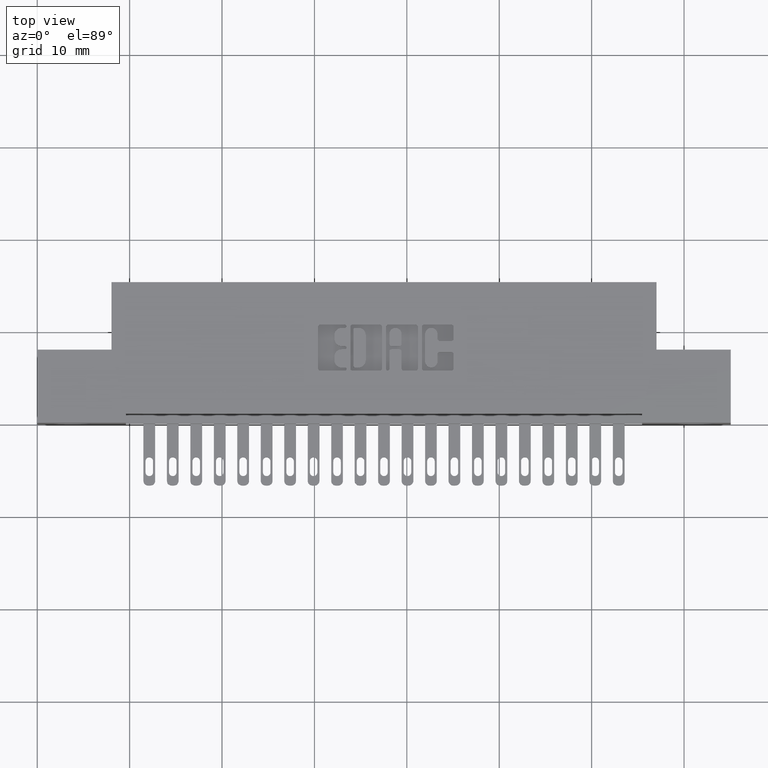
[diagram: clean part render]
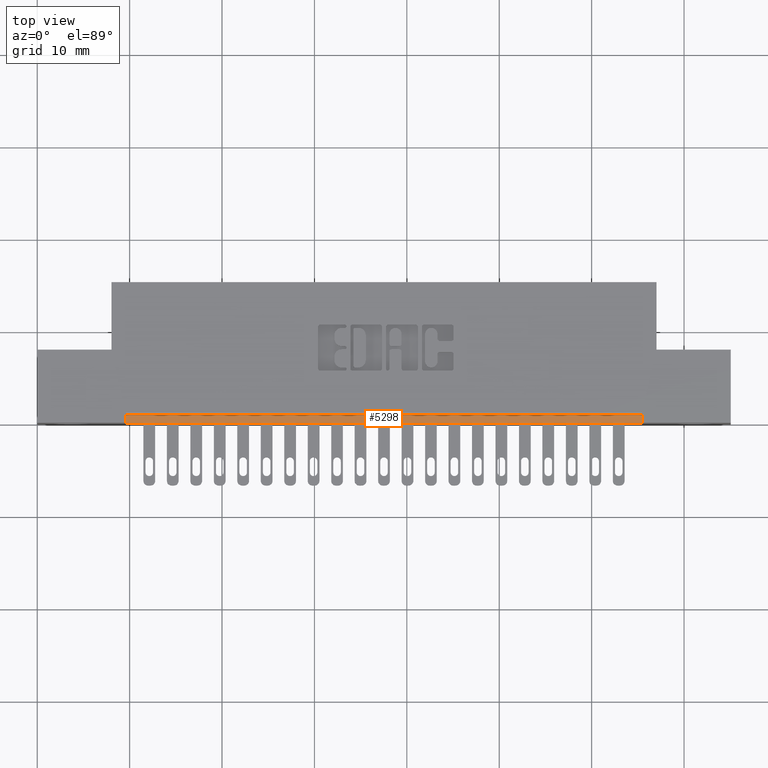
[diagram: same view with one face highlighted and labeled with its STEP entity id]
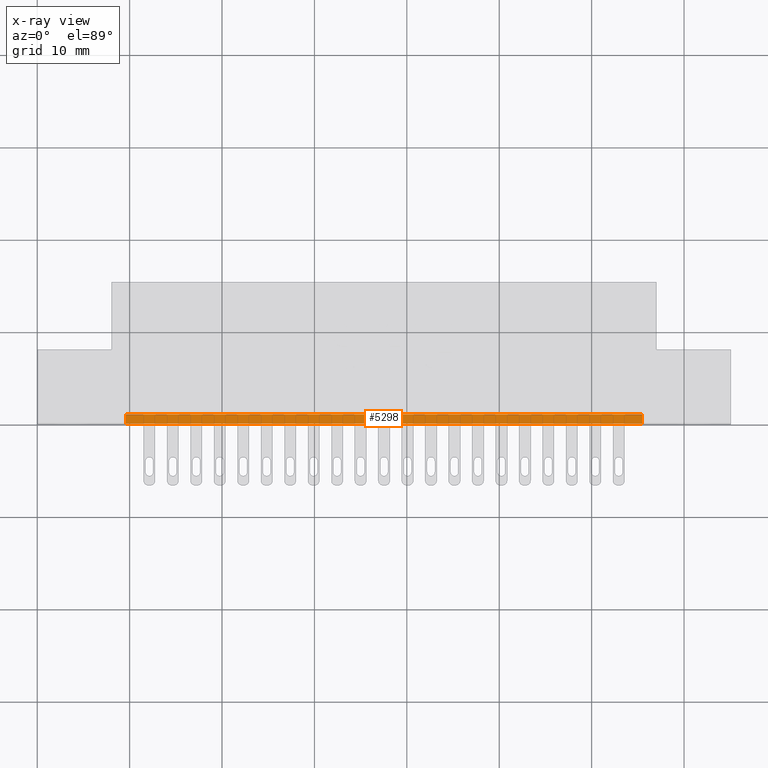
[diagram: x-ray of the same camera — body ghosted, the highlighted face saturated]
A machine part, top view. The second image highlights one B-rep face of the part: STEP entity #5298.
The next image is the same camera in x-ray: the body ghosted, the highlighted face saturated — about 0% of this face is hidden behind the body in this view.
In plain terms, the highlighted planar face has unit normal (-0, 0, -1).
Its self-contained STEP definition (entity closure, byte-faithful):
#75 = DIRECTION ( 'NONE',  ( -1.000000000000000000, 0.0000000000000000000, 9.313118160219080300E-017 ) ) ;
#498 = DIRECTION ( 'NONE',  ( -0.0000000000000000000, -1.000000000000000000, -0.0000000000000000000 ) ) ;
#501 = FACE_OUTER_BOUND ( 'NONE', #7439, .T. ) ;
#758 = EDGE_CURVE ( 'NONE', #15745, #4745, #8565, .T. ) ;
#942 = CARTESIAN_POINT ( 'NONE',  ( 2.577500000000000100, 0.0000000000000000000, -0.2100000000000002100 ) ) ;
#1022 = DIRECTION ( 'NONE',  ( -0.0000000000000000000, -1.000000000000000000, -0.0000000000000000000 ) ) ;
#2029 = LINE ( 'NONE', #4986, #10491 ) ;
#2307 = ORIENTED_EDGE ( 'NONE', *, *, #7361, .T. ) ;
#2315 = VECTOR ( 'NONE', #9880, 39.37007874015748100 ) ;
#2374 = VERTEX_POINT ( 'NONE', #942 ) ;
#3575 = VERTEX_POINT ( 'NONE', #5724 ) ;
#4511 = CARTESIAN_POINT ( 'NONE',  ( 0.3775000000000000000, 0.04000000000000000100, -0.2100000000000000200 ) ) ;
#4745 = VERTEX_POINT ( 'NONE', #14557 ) ;
#4986 = CARTESIAN_POINT ( 'NONE',  ( 2.577500000000000100, 0.04000000000000000100, -0.2100000000000002100 ) ) ;
#5298 = ADVANCED_FACE ( 'NONE', ( #501 ), #9224, .F. ) ;
#5724 = CARTESIAN_POINT ( 'NONE',  ( 0.3775000000000000000, 0.0000000000000000000, -0.2100000000000000200 ) ) ;
#5945 = EDGE_CURVE ( 'NONE', #15745, #3575, #13602, .T. ) ;
#6341 = LINE ( 'NONE', #15837, #9135 ) ;
#6547 = CARTESIAN_POINT ( 'NONE',  ( 0.3775000000000000000, 0.04000000000000000100, -0.2100000000000000200 ) ) ;
#6933 = VECTOR ( 'NONE', #498, 39.37007874015748100 ) ;
#7361 = EDGE_CURVE ( 'NONE', #3575, #2374, #6341, .T. ) ;
#7439 = EDGE_LOOP ( 'NONE', ( #2307, #8476, #16429, #13741 ) ) ;
#8476 = ORIENTED_EDGE ( 'NONE', *, *, #14781, .F. ) ;
#8565 = LINE ( 'NONE', #4511, #2315 ) ;
#9135 = VECTOR ( 'NONE', #9919, 39.37007874015748100 ) ;
#9224 = PLANE ( 'NONE',  #14737 ) ;
#9259 = CARTESIAN_POINT ( 'NONE',  ( 0.3775000000000000000, 0.04000000000000000100, -0.2100000000000000200 ) ) ;
#9880 = DIRECTION ( 'NONE',  ( 1.000000000000000000, 0.0000000000000000000, -9.313118160219080300E-017 ) ) ;
#9919 = DIRECTION ( 'NONE',  ( 1.000000000000000000, 0.0000000000000000000, -9.313118160219080300E-017 ) ) ;
#10491 = VECTOR ( 'NONE', #1022, 39.37007874015748100 ) ;
#10789 = CARTESIAN_POINT ( 'NONE',  ( 0.3775000000000000000, 0.04000000000000000100, -0.2100000000000000200 ) ) ;
#13602 = LINE ( 'NONE', #10789, #6933 ) ;
#13741 = ORIENTED_EDGE ( 'NONE', *, *, #5945, .T. ) ;
#14557 = CARTESIAN_POINT ( 'NONE',  ( 2.577500000000000100, 0.04000000000000000100, -0.2100000000000002100 ) ) ;
#14737 = AXIS2_PLACEMENT_3D ( 'NONE', #6547, #15721, #75 ) ;
#14781 = EDGE_CURVE ( 'NONE', #4745, #2374, #2029, .T. ) ;
#15721 = DIRECTION ( 'NONE',  ( -9.313118160219080300E-017, 0.0000000000000000000, -1.000000000000000000 ) ) ;
#15745 = VERTEX_POINT ( 'NONE', #9259 ) ;
#15837 = CARTESIAN_POINT ( 'NONE',  ( 0.3775000000000000000, 0.0000000000000000000, -0.2100000000000000200 ) ) ;
#16429 = ORIENTED_EDGE ( 'NONE', *, *, #758, .F. ) ;